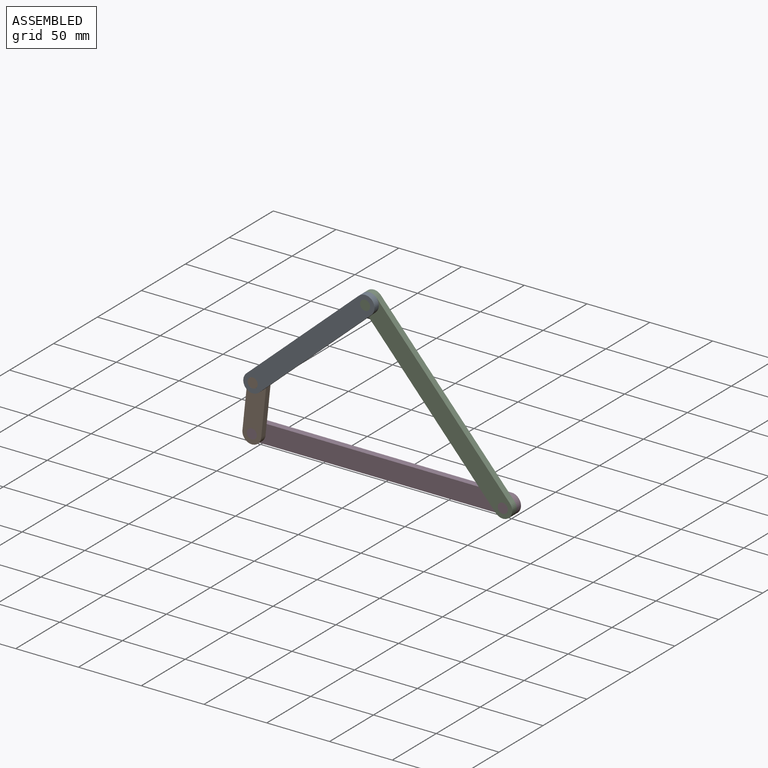
[diagram: assembled view]
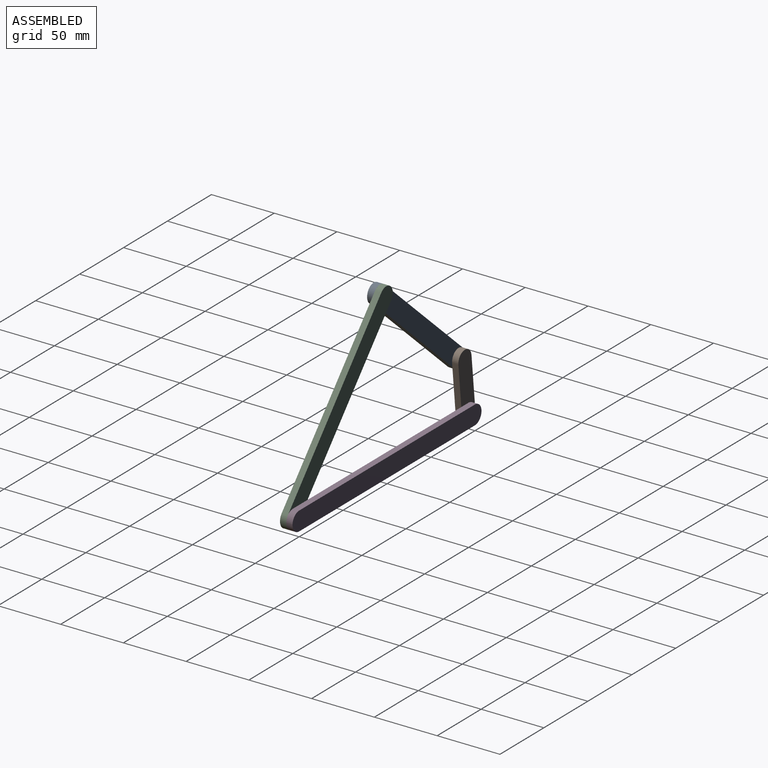
[diagram: assembled view, second angle]
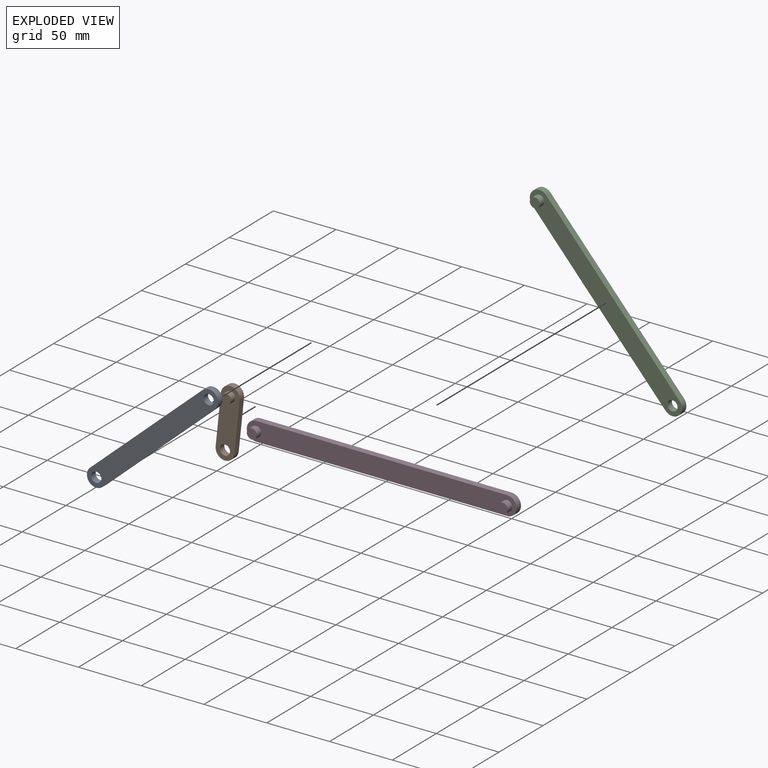
[diagram: exploded view]
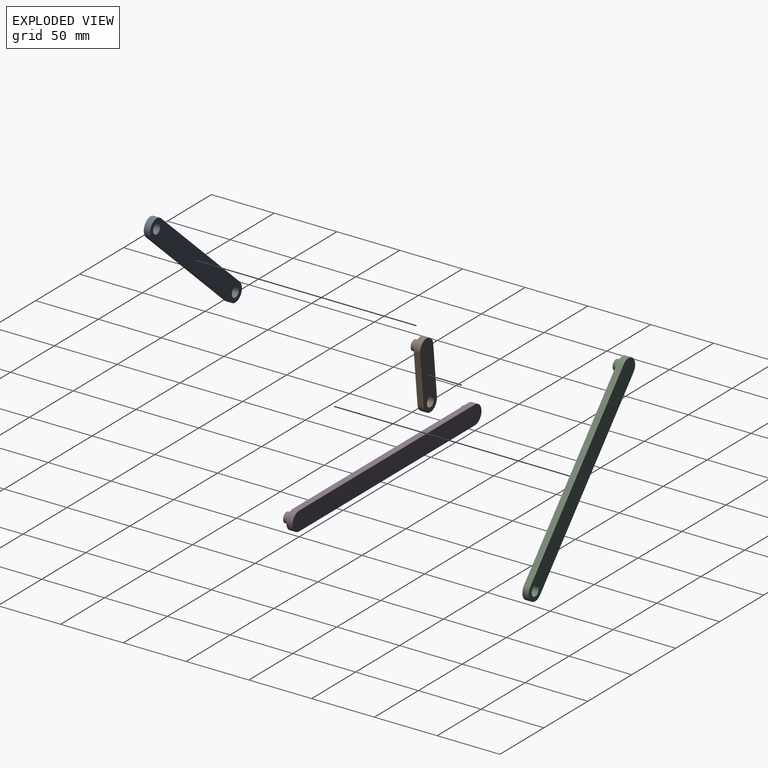
[diagram: exploded view, second angle]
ASSEMBLY  parts=4 mates=4
PART A: 8 faces, bbox 94.5x5x104.9 mm
  f0: cylinder r=7.5mm len=13.12mm, axis (0,1,0), area 117.8mm2, adj f1,f3,f6,f7
  f1: plane 89.87x79.52mm, normal (0.75,0,-0.66), area 600mm2, adj f0,f2,f6,f7
  f2: cylinder r=7.5mm len=13.12mm, axis (0,1,0), area 117.8mm2, adj f1,f3,f6,f7
  f3: plane 89.87x79.52mm, normal (-0.75,0,0.66), area 600mm2, adj f0,f2,f6,f7
  f4: cylinder r=4mm len=8mm, axis (0,1,0), area 125.7mm2, adj f6,f7
  f5: cylinder r=4mm len=8mm, axis (0,1,0), area 125.7mm2, adj f6,f7
  f6: plane 104.87x94.52mm, normal (0,-1,0), area 1876.2mm2, adj f0,f1,f2,f3,f4,f5
  f7: plane 104.87x94.52mm, normal (0,1,0), area 1876.2mm2, adj f0,f1,f2,f3,f4,f5
PART B: 9 faces, bbox 35x10x49.6 mm
  f0: cylinder r=7.5mm len=14mm, axis (0,1,0), area 117.8mm2, adj f1,f3,f5,f6
  f1: plane 34.64x20mm, normal (0.87,0,-0.5), area 200mm2, adj f0,f2,f5,f6
  f2: cylinder r=7.5mm len=14mm, axis (0,1,0), area 117.8mm2, adj f1,f3,f5,f6
  f3: plane 34.64x20mm, normal (-0.87,0,0.5), area 200mm2, adj f0,f2,f5,f6
  f4: cylinder r=4mm len=8mm, axis (0,1,0), area 125.7mm2, adj f5,f6
  f5: plane 49.64x35mm, normal (0,-1,0), area 676.2mm2, adj f0,f1,f2,f3,f4,f7
  f6: plane 49.64x35mm, normal (0,1,0), area 726.4mm2, adj f0,f1,f2,f3,f4
  f7: cylinder r=4mm len=8mm, axis (0,1,0), area 125.7mm2, adj f5,f8
  f8: plane 8x8mm, normal (0,-1,0), area 50.3mm2, adj f7
PART C: 9 faces, bbox 115.5x10x139.5 mm
  f0: cylinder r=7.5mm len=13.34mm, axis (0,1,0), area 117.8mm2, adj f1,f3,f5,f6
  f1: plane 124.51x100.48mm, normal (0.78,0,0.63), area 800mm2, adj f0,f2,f5,f6
  f2: cylinder r=7.5mm len=13.34mm, axis (0,1,0), area 117.8mm2, adj f1,f3,f5,f6
  f3: plane 124.51x100.48mm, normal (-0.78,0,-0.63), area 800mm2, adj f0,f2,f5,f6
  f4: cylinder r=4mm len=8mm, axis (0,1,0), area 125.7mm2, adj f5,f6
  f5: plane 139.51x115.48mm, normal (0,-1,0), area 2476.2mm2, adj f0,f1,f2,f3,f4,f7
  f6: plane 139.51x115.48mm, normal (0,1,0), area 2526.4mm2, adj f0,f1,f2,f3,f4
  f7: cylinder r=4mm len=8mm, axis (0,1,0), area 125.7mm2, adj f5,f8
  f8: plane 8x8mm, normal (0,-1,0), area 50.3mm2, adj f7
PART D: 10 faces, bbox 215x10x15 mm
  f0: cylinder r=7.5mm len=15mm, axis (0,1,0), area 117.8mm2, adj f1,f3,f4,f5
  f1: plane 200x5mm, normal (0,0,-1), area 1000mm2, adj f0,f2,f4,f5
  f2: cylinder r=7.5mm len=15mm, axis (0,1,0), area 117.8mm2, adj f1,f3,f4,f5
  f3: plane 200x5mm, normal (0,0,1), area 1000mm2, adj f0,f2,f4,f5
  f4: plane 215x15mm, normal (0,-1,0), area 3076.2mm2, adj f0,f1,f2,f3,f6,f8
  f5: plane 215x15mm, normal (0,1,0), area 3176.7mm2, adj f0,f1,f2,f3
  f6: cylinder r=4mm len=8mm, axis (0,1,0), area 125.7mm2, adj f4,f7
  f7: plane 8x8mm, normal (0,-1,0), area 50.3mm2, adj f6
  f8: cylinder r=4mm len=8mm, axis (0,1,0), area 125.7mm2, adj f4,f9
  f9: plane 8x8mm, normal (0,-1,0), area 50.3mm2, adj f8
PLACE A rot(axis=(0,1,0),6.8deg) t=(-19.74,0,7.74)mm
PLACE B rot(axis=(0,-1,0),24deg) t=(0,0,0)mm
PLACE C rot(axis=(0,-1,0),2.7deg) t=(0.22,0,-9.41)mm
PLACE D at identity fixed
MATE revolute A.f0 <-> B.f2  axis (0,-1,0) through (4.21,-15,39.78)mm
MATE revolute D.f8 <-> C.f0  axis (0,-1,0) through (200,-10,0)mm
MATE revolute B.f0 <-> D.f6  axis (0,-1,0) through (0,-10,0)mm
MATE revolute A.f2 <-> C.f2  axis (0,-1,0) through (93.77,-15,119.65)mm
